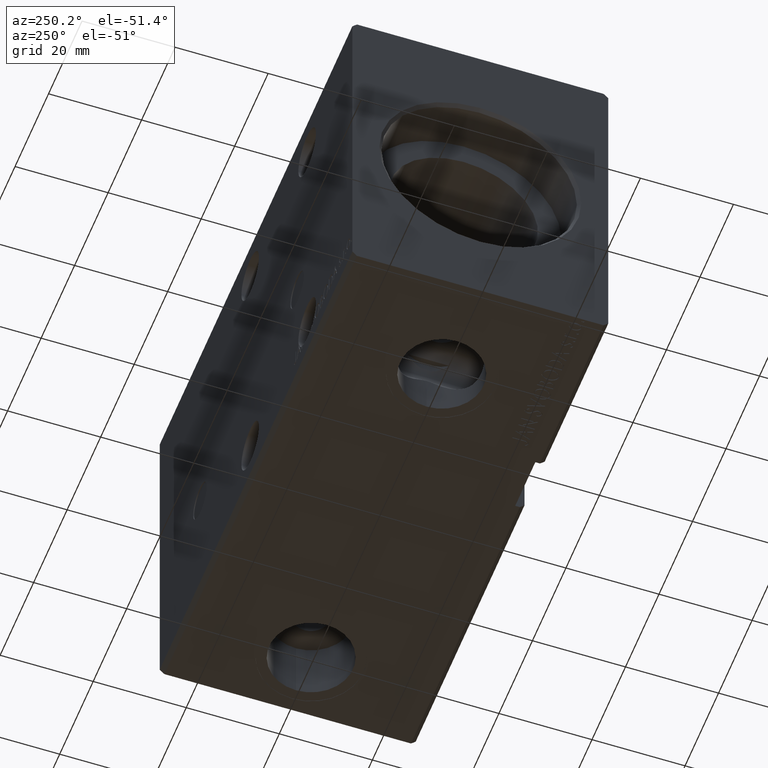
[diagram: clean part render]
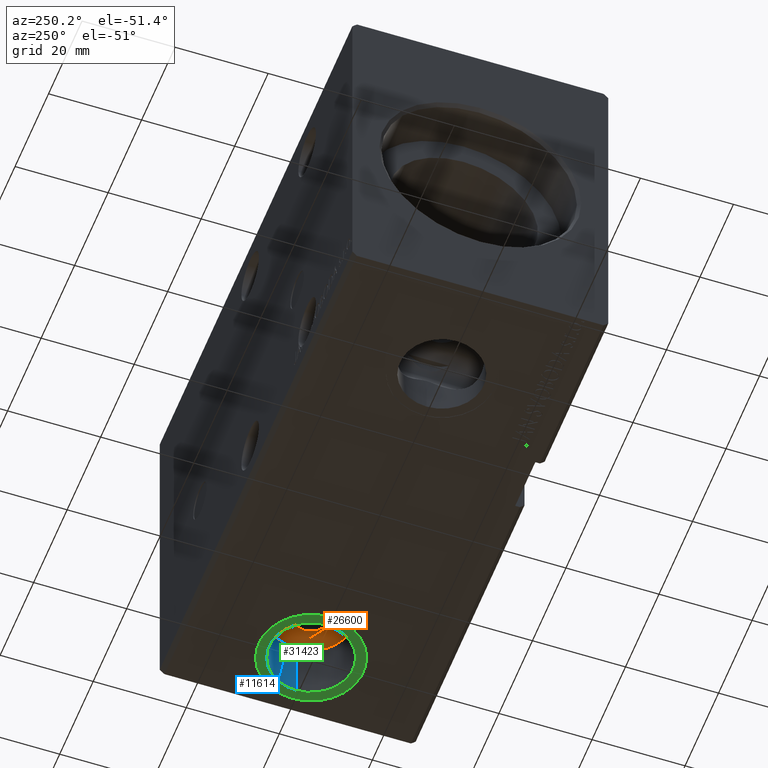
[diagram: same view with three faces highlighted in distinct colors, each labeled with its STEP entity id]
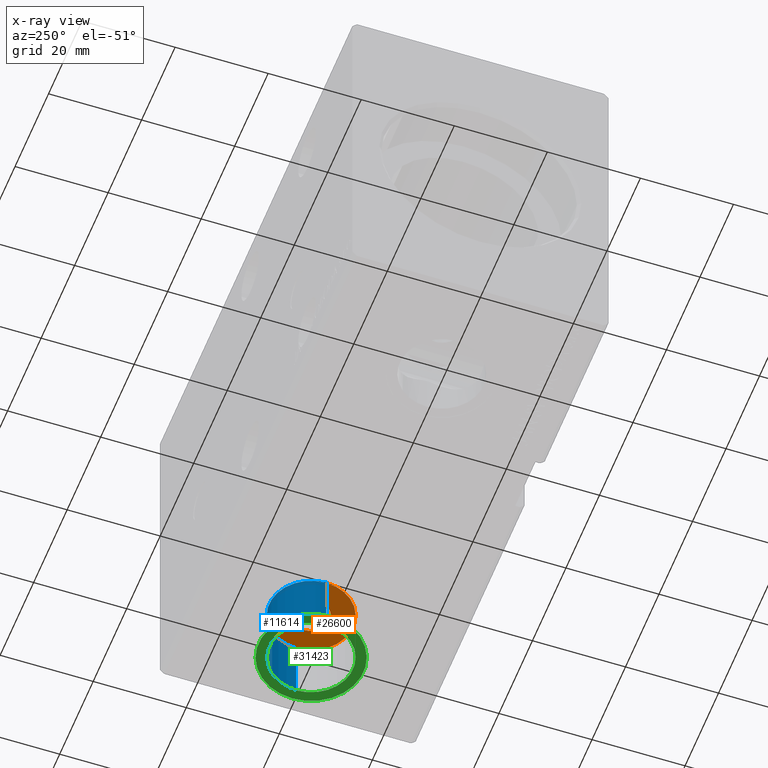
[diagram: x-ray of the same camera — body ghosted, the three highlighted faces saturated]
A machine part, auxiliary view with three faces highlighted in distinct colors.
The next image is the same camera in x-ray (body ghosted, the three faces saturated) — at least one of them is partly hidden behind the body in this view.
Their STEP definitions:

[orange] entity #26600 — the highlighted planar face has unit normal (0, 0, -1).
#17 = CIRCLE ( 'NONE', #5771, 8.999999999999994671 ) ;
#542 = AXIS2_PLACEMENT_3D ( 'NONE', #22366, #10392, #7406 ) ;
#1800 = CARTESIAN_POINT ( 'NONE',  ( 101.0000000000000000, -1.424819663353346309E-14, -23.79999999999998650 ) ) ;
#2330 = FACE_BOUND ( 'NONE', #31059, .T. ) ;
#4734 = EDGE_CURVE ( 'NONE', #36368, #29880, #32856, .T. ) ;
#4778 = DIRECTION ( 'NONE',  ( -1.000000000000000000, 0.000000000000000000, 0.000000000000000000 ) ) ;
#4904 = DIRECTION ( 'NONE',  ( 0.000000000000000000, 0.000000000000000000, -1.000000000000000000 ) ) ;
#5771 = AXIS2_PLACEMENT_3D ( 'NONE', #11857, #24020, #27201 ) ;
#6251 = CIRCLE ( 'NONE', #542, 4.000000000000003553 ) ;
#6262 = ORIENTED_EDGE ( 'NONE', *, *, #4734, .T. ) ;
#7406 = DIRECTION ( 'NONE',  ( -1.000000000000000000, 0.000000000000000000, 0.000000000000000000 ) ) ;
#7900 = PLANE ( 'NONE',  #9461 ) ;
#8500 = DIRECTION ( 'NONE',  ( -1.000000000000000000, 0.000000000000000000, -0.000000000000000000 ) ) ;
#9461 = AXIS2_PLACEMENT_3D ( 'NONE', #20645, #11082, #8500 ) ;
#10392 = DIRECTION ( 'NONE',  ( 0.000000000000000000, 0.000000000000000000, -1.000000000000000000 ) ) ;
#11082 = DIRECTION ( 'NONE',  ( 0.000000000000000000, 0.000000000000000000, -1.000000000000000000 ) ) ;
#11635 = ORIENTED_EDGE ( 'NONE', *, *, #32279, .T. ) ;
#11857 = CARTESIAN_POINT ( 'NONE',  ( 101.0000000000000000, -1.424819663353346309E-14, -23.79999999999998650 ) ) ;
#14094 = ORIENTED_EDGE ( 'NONE', *, *, #34895, .F. ) ;
#15534 = CARTESIAN_POINT ( 'NONE',  ( 110.0000000000000000, -1.314601451430084518E-14, -23.79999999999998650 ) ) ;
#16590 = EDGE_LOOP ( 'NONE', ( #6262, #11635 ) ) ;
#19911 = DIRECTION ( 'NONE',  ( 0.000000000000000000, 0.000000000000000000, -1.000000000000000000 ) ) ;
#20645 = CARTESIAN_POINT ( 'NONE',  ( 0.000000000000000000, 0.000000000000000000, -23.79999999999998650 ) ) ;
#21929 = CARTESIAN_POINT ( 'NONE',  ( 105.0000000000000142, -1.375833791387452092E-14, -23.79999999999998650 ) ) ;
#22366 = CARTESIAN_POINT ( 'NONE',  ( 101.0000000000000000, -1.424819663353346309E-14, -23.79999999999998650 ) ) ;
#24020 = DIRECTION ( 'NONE',  ( 0.000000000000000000, 0.000000000000000000, -1.000000000000000000 ) ) ;
#25196 = EDGE_CURVE ( 'NONE', #37647, #33226, #6251, .T. ) ;
#26600 = ADVANCED_FACE ( 'NONE', ( #2330, #32213 ), #7900, .T. ) ;
#27127 = AXIS2_PLACEMENT_3D ( 'NONE', #1800, #19911, #4778 ) ;
#27201 = DIRECTION ( 'NONE',  ( -1.000000000000000000, 0.000000000000000000, 0.000000000000000000 ) ) ;
#27873 = ORIENTED_EDGE ( 'NONE', *, *, #25196, .F. ) ;
#28797 = DIRECTION ( 'NONE',  ( -1.000000000000000000, 0.000000000000000000, 0.000000000000000000 ) ) ;
#29300 = CIRCLE ( 'NONE', #36913, 4.000000000000003553 ) ;
#29880 = VERTEX_POINT ( 'NONE', #15534 ) ;
#31059 = EDGE_LOOP ( 'NONE', ( #14094, #27873 ) ) ;
#31159 = CARTESIAN_POINT ( 'NONE',  ( 97.00000000000000000, -1.424819663353346309E-14, -23.79999999999998650 ) ) ;
#32213 = FACE_OUTER_BOUND ( 'NONE', #16590, .T. ) ;
#32279 = EDGE_CURVE ( 'NONE', #29880, #36368, #17, .T. ) ;
#32856 = CIRCLE ( 'NONE', #27127, 8.999999999999994671 ) ;
#33226 = VERTEX_POINT ( 'NONE', #31159 ) ;
#34895 = EDGE_CURVE ( 'NONE', #33226, #37647, #29300, .T. ) ;
#35593 = CARTESIAN_POINT ( 'NONE',  ( 101.0000000000000000, -1.424819663353346309E-14, -23.79999999999998650 ) ) ;
#36368 = VERTEX_POINT ( 'NONE', #36673 ) ;
#36673 = CARTESIAN_POINT ( 'NONE',  ( 92.00000000000001421, -1.424819663353346309E-14, -23.79999999999998650 ) ) ;
#36913 = AXIS2_PLACEMENT_3D ( 'NONE', #35593, #4904, #28797 ) ;
#37647 = VERTEX_POINT ( 'NONE', #21929 ) ;

[blue] entity #11614 — the highlighted cylindrical surface (partial cylindrical patch) has radius 9 mm, axis along (-0, -0, -1).
#1508 = ORIENTED_EDGE ( 'NONE', *, *, #38005, .T. ) ;
#1800 = CARTESIAN_POINT ( 'NONE',  ( 101.0000000000000000, -1.424819663353346309E-14, -23.79999999999998650 ) ) ;
#4592 = VERTEX_POINT ( 'NONE', #7190 ) ;
#4734 = EDGE_CURVE ( 'NONE', #36368, #29880, #32856, .T. ) ;
#4778 = DIRECTION ( 'NONE',  ( -1.000000000000000000, 0.000000000000000000, 0.000000000000000000 ) ) ;
#5550 = VECTOR ( 'NONE', #9794, 1000.000000000000000 ) ;
#5785 = EDGE_LOOP ( 'NONE', ( #11847, #22767, #18304, #1508 ) ) ;
#7190 = CARTESIAN_POINT ( 'NONE',  ( 92.00000000000001421, -1.424819663353346309E-14, -37.39999999999999147 ) ) ;
#9794 = DIRECTION ( 'NONE',  ( -0.000000000000000000, -0.000000000000000000, -1.000000000000000000 ) ) ;
#10424 = FACE_OUTER_BOUND ( 'NONE', #5785, .T. ) ;
#11083 = DIRECTION ( 'NONE',  ( 0.000000000000000000, 0.000000000000000000, -1.000000000000000000 ) ) ;
#11614 = ADVANCED_FACE ( 'NONE', ( #10424 ), #28552, .F. ) ;
#11847 = ORIENTED_EDGE ( 'NONE', *, *, #16905, .F. ) ;
#12117 = AXIS2_PLACEMENT_3D ( 'NONE', #23240, #11083, #38221 ) ;
#12585 = LINE ( 'NONE', #12977, #5550 ) ;
#12977 = CARTESIAN_POINT ( 'NONE',  ( 110.0000000000000000, -1.314601451430084518E-14, -23.79999999999998650 ) ) ;
#15534 = CARTESIAN_POINT ( 'NONE',  ( 110.0000000000000000, -1.314601451430084518E-14, -23.79999999999998650 ) ) ;
#16905 = EDGE_CURVE ( 'NONE', #29880, #17463, #12585, .T. ) ;
#17463 = VERTEX_POINT ( 'NONE', #19882 ) ;
#18304 = ORIENTED_EDGE ( 'NONE', *, *, #38654, .T. ) ;
#19118 = CIRCLE ( 'NONE', #12117, 8.999999999999994671 ) ;
#19882 = CARTESIAN_POINT ( 'NONE',  ( 110.0000000000000000, -1.314601451430084518E-14, -37.39999999999999147 ) ) ;
#19911 = DIRECTION ( 'NONE',  ( 0.000000000000000000, 0.000000000000000000, -1.000000000000000000 ) ) ;
#19969 = CARTESIAN_POINT ( 'NONE',  ( 101.0000000000000000, -1.424819663353346309E-14, -23.79999999999998650 ) ) ;
#21739 = CARTESIAN_POINT ( 'NONE',  ( 92.00000000000001421, -1.424819663353346309E-14, -23.79999999999998650 ) ) ;
#21931 = DIRECTION ( 'NONE',  ( -0.000000000000000000, -0.000000000000000000, -1.000000000000000000 ) ) ;
#22767 = ORIENTED_EDGE ( 'NONE', *, *, #4734, .F. ) ;
#22771 = DIRECTION ( 'NONE',  ( -1.000000000000000000, 0.000000000000000000, 0.000000000000000000 ) ) ;
#23240 = CARTESIAN_POINT ( 'NONE',  ( 101.0000000000000000, -1.424819663353346309E-14, -37.39999999999999147 ) ) ;
#27127 = AXIS2_PLACEMENT_3D ( 'NONE', #1800, #19911, #4778 ) ;
#27511 = LINE ( 'NONE', #21739, #38234 ) ;
#28552 = CYLINDRICAL_SURFACE ( 'NONE', #35910, 8.999999999999994671 ) ;
#29880 = VERTEX_POINT ( 'NONE', #15534 ) ;
#32856 = CIRCLE ( 'NONE', #27127, 8.999999999999994671 ) ;
#35329 = DIRECTION ( 'NONE',  ( -0.000000000000000000, -0.000000000000000000, -1.000000000000000000 ) ) ;
#35910 = AXIS2_PLACEMENT_3D ( 'NONE', #19969, #35329, #22771 ) ;
#36368 = VERTEX_POINT ( 'NONE', #36673 ) ;
#36673 = CARTESIAN_POINT ( 'NONE',  ( 92.00000000000001421, -1.424819663353346309E-14, -23.79999999999998650 ) ) ;
#38005 = EDGE_CURVE ( 'NONE', #4592, #17463, #19118, .T. ) ;
#38221 = DIRECTION ( 'NONE',  ( -1.000000000000000000, 0.000000000000000000, 0.000000000000000000 ) ) ;
#38234 = VECTOR ( 'NONE', #21931, 1000.000000000000000 ) ;
#38654 = EDGE_CURVE ( 'NONE', #36368, #4592, #27511, .T. ) ;

[green] entity #31423 — the highlighted planar face has unit normal (0, 0, -1).
#4592 = VERTEX_POINT ( 'NONE', #7190 ) ;
#6264 = DIRECTION ( 'NONE',  ( 0.000000000000000000, 0.000000000000000000, -1.000000000000000000 ) ) ;
#7190 = CARTESIAN_POINT ( 'NONE',  ( 92.00000000000001421, -1.424819663353346309E-14, -37.39999999999999147 ) ) ;
#7647 = FACE_BOUND ( 'NONE', #26298, .T. ) ;
#9552 = CARTESIAN_POINT ( 'NONE',  ( 101.0000000000000000, -1.424819663353346309E-14, -37.39999999999999147 ) ) ;
#10608 = CARTESIAN_POINT ( 'NONE',  ( 89.75000000000001421, -1.424819663353346309E-14, -37.39999999999999147 ) ) ;
#10827 = DIRECTION ( 'NONE',  ( 0.000000000000000000, 0.000000000000000000, -1.000000000000000000 ) ) ;
#11083 = DIRECTION ( 'NONE',  ( 0.000000000000000000, 0.000000000000000000, -1.000000000000000000 ) ) ;
#11565 = EDGE_CURVE ( 'NONE', #24145, #35177, #12995, .T. ) ;
#12117 = AXIS2_PLACEMENT_3D ( 'NONE', #23240, #11083, #38221 ) ;
#12995 = CIRCLE ( 'NONE', #13612, 11.24999999999999645 ) ;
#13007 = EDGE_CURVE ( 'NONE', #17463, #4592, #19392, .T. ) ;
#13215 = ORIENTED_EDGE ( 'NONE', *, *, #13007, .F. ) ;
#13494 = EDGE_LOOP ( 'NONE', ( #38235, #23803 ) ) ;
#13606 = DIRECTION ( 'NONE',  ( -1.000000000000000000, 0.000000000000000000, -0.000000000000000000 ) ) ;
#13612 = AXIS2_PLACEMENT_3D ( 'NONE', #20807, #6264, #30560 ) ;
#15676 = DIRECTION ( 'NONE',  ( -1.000000000000000000, 0.000000000000000000, 0.000000000000000000 ) ) ;
#17463 = VERTEX_POINT ( 'NONE', #19882 ) ;
#19118 = CIRCLE ( 'NONE', #12117, 8.999999999999994671 ) ;
#19392 = CIRCLE ( 'NONE', #24489, 8.999999999999994671 ) ;
#19596 = CARTESIAN_POINT ( 'NONE',  ( 112.2500000000000000, -1.287046898449269110E-14, -37.39999999999999147 ) ) ;
#19791 = CARTESIAN_POINT ( 'NONE',  ( 101.0000000000000000, -1.424819663353346309E-14, -37.39999999999999147 ) ) ;
#19882 = CARTESIAN_POINT ( 'NONE',  ( 110.0000000000000000, -1.314601451430084518E-14, -37.39999999999999147 ) ) ;
#19983 = FACE_OUTER_BOUND ( 'NONE', #13494, .T. ) ;
#20807 = CARTESIAN_POINT ( 'NONE',  ( 101.0000000000000000, -1.424819663353346309E-14, -37.39999999999999147 ) ) ;
#21711 = DIRECTION ( 'NONE',  ( -1.000000000000000000, 0.000000000000000000, 0.000000000000000000 ) ) ;
#23240 = CARTESIAN_POINT ( 'NONE',  ( 101.0000000000000000, -1.424819663353346309E-14, -37.39999999999999147 ) ) ;
#23803 = ORIENTED_EDGE ( 'NONE', *, *, #25650, .T. ) ;
#24145 = VERTEX_POINT ( 'NONE', #10608 ) ;
#24489 = AXIS2_PLACEMENT_3D ( 'NONE', #9552, #25282, #21711 ) ;
#25282 = DIRECTION ( 'NONE',  ( 0.000000000000000000, 0.000000000000000000, -1.000000000000000000 ) ) ;
#25650 = EDGE_CURVE ( 'NONE', #35177, #24145, #25949, .T. ) ;
#25949 = CIRCLE ( 'NONE', #32959, 11.24999999999999645 ) ;
#26298 = EDGE_LOOP ( 'NONE', ( #34989, #13215 ) ) ;
#27252 = CARTESIAN_POINT ( 'NONE',  ( 101.0000000000000000, -1.424819663353346309E-14, -37.39999999999999147 ) ) ;
#27839 = DIRECTION ( 'NONE',  ( 0.000000000000000000, 0.000000000000000000, -1.000000000000000000 ) ) ;
#28363 = PLANE ( 'NONE',  #31815 ) ;
#30560 = DIRECTION ( 'NONE',  ( -1.000000000000000000, 0.000000000000000000, 0.000000000000000000 ) ) ;
#31423 = ADVANCED_FACE ( 'NONE', ( #7647, #19983 ), #28363, .T. ) ;
#31815 = AXIS2_PLACEMENT_3D ( 'NONE', #19791, #10827, #13606 ) ;
#32959 = AXIS2_PLACEMENT_3D ( 'NONE', #27252, #27839, #15676 ) ;
#34989 = ORIENTED_EDGE ( 'NONE', *, *, #38005, .F. ) ;
#35177 = VERTEX_POINT ( 'NONE', #19596 ) ;
#38005 = EDGE_CURVE ( 'NONE', #4592, #17463, #19118, .T. ) ;
#38221 = DIRECTION ( 'NONE',  ( -1.000000000000000000, 0.000000000000000000, 0.000000000000000000 ) ) ;
#38235 = ORIENTED_EDGE ( 'NONE', *, *, #11565, .T. ) ;